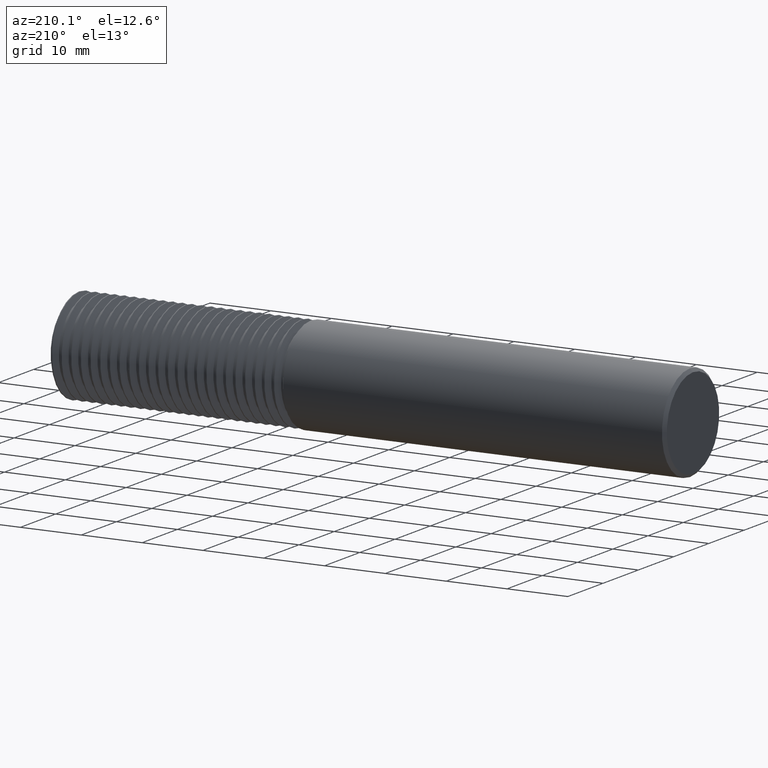
[diagram: clean part render]
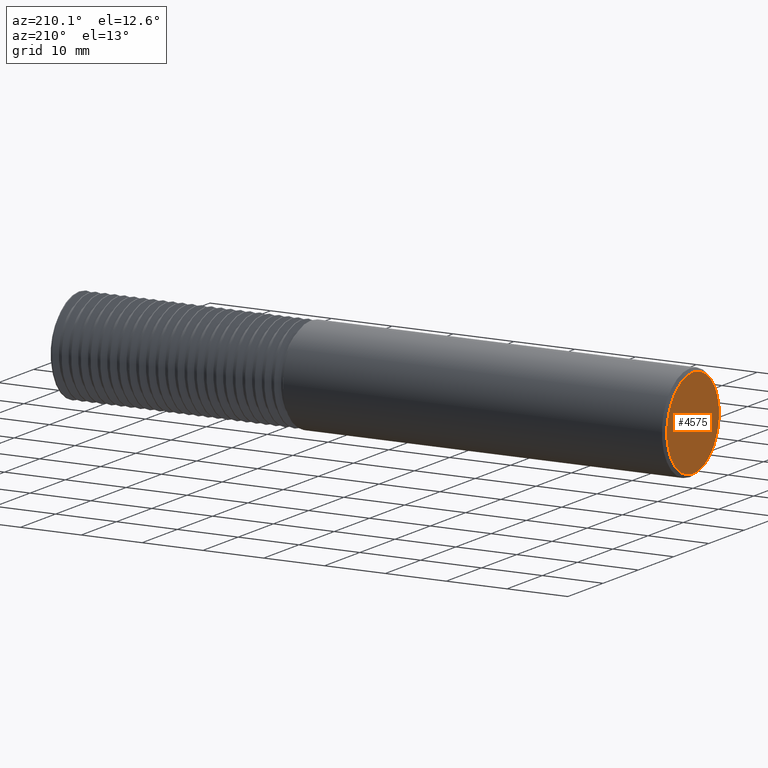
[diagram: same view with one face highlighted and labeled with its STEP entity id]
A machine part, auxiliary view. The second image highlights one B-rep face of the part: STEP entity #4575.
In plain terms, the highlighted planar face has unit normal (-1, 0, 0).
Its self-contained STEP definition (entity closure, byte-faithful):
#333 = CARTESIAN_POINT ( 'NONE',  ( 0.000000000000000000, 0.000000000000000000, 0.000000000000000000 ) ) ;
#347 = DIRECTION ( 'NONE',  ( 0.000000000000000000, 0.000000000000000000, 1.000000000000000000 ) ) ;
#610 = CIRCLE ( 'NONE', #3515, 0.2923499999999999432 ) ;
#655 = ORIENTED_EDGE ( 'NONE', *, *, #5033, .T. ) ;
#947 = EDGE_LOOP ( 'NONE', ( #655, #2173 ) ) ;
#1118 = CARTESIAN_POINT ( 'NONE',  ( 0.000000000000000000, 0.000000000000000000, 0.000000000000000000 ) ) ;
#1467 = CARTESIAN_POINT ( 'NONE',  ( 0.000000000000000000, 0.000000000000000000, 0.000000000000000000 ) ) ;
#1596 = EDGE_CURVE ( 'NONE', #2521, #4967, #610, .T. ) ;
#1883 = CIRCLE ( 'NONE', #5029, 0.2923499999999999432 ) ;
#2022 = DIRECTION ( 'NONE',  ( -1.000000000000000000, 0.000000000000000000, 0.000000000000000000 ) ) ;
#2173 = ORIENTED_EDGE ( 'NONE', *, *, #1596, .T. ) ;
#2315 = DIRECTION ( 'NONE',  ( -1.000000000000000000, 0.000000000000000000, 0.000000000000000000 ) ) ;
#2521 = VERTEX_POINT ( 'NONE', #5116 ) ;
#2702 = DIRECTION ( 'NONE',  ( 0.000000000000000000, 0.000000000000000000, 1.000000000000000000 ) ) ;
#2707 = DIRECTION ( 'NONE',  ( 0.000000000000000000, 0.000000000000000000, 1.000000000000000000 ) ) ;
#3447 = CARTESIAN_POINT ( 'NONE',  ( 0.000000000000000000, 0.000000000000000000, -0.2923499999999999432 ) ) ;
#3515 = AXIS2_PLACEMENT_3D ( 'NONE', #333, #2022, #2702 ) ;
#3542 = FACE_OUTER_BOUND ( 'NONE', #947, .T. ) ;
#4042 = AXIS2_PLACEMENT_3D ( 'NONE', #1467, #2315, #347 ) ;
#4575 = ADVANCED_FACE ( 'NONE', ( #3542 ), #5020, .T. ) ;
#4648 = DIRECTION ( 'NONE',  ( -1.000000000000000000, 0.000000000000000000, 0.000000000000000000 ) ) ;
#4967 = VERTEX_POINT ( 'NONE', #3447 ) ;
#5020 = PLANE ( 'NONE',  #4042 ) ;
#5029 = AXIS2_PLACEMENT_3D ( 'NONE', #1118, #4648, #2707 ) ;
#5033 = EDGE_CURVE ( 'NONE', #4967, #2521, #1883, .T. ) ;
#5116 = CARTESIAN_POINT ( 'NONE',  ( 0.000000000000000000, 3.702719597222022173E-17, 0.2923499999999999432 ) ) ;